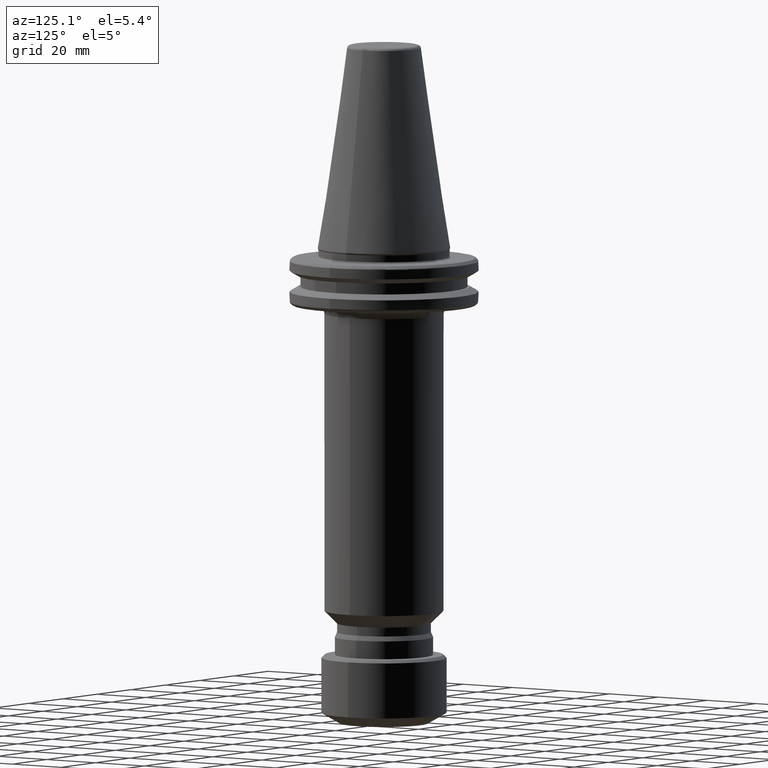
[diagram: clean part render]
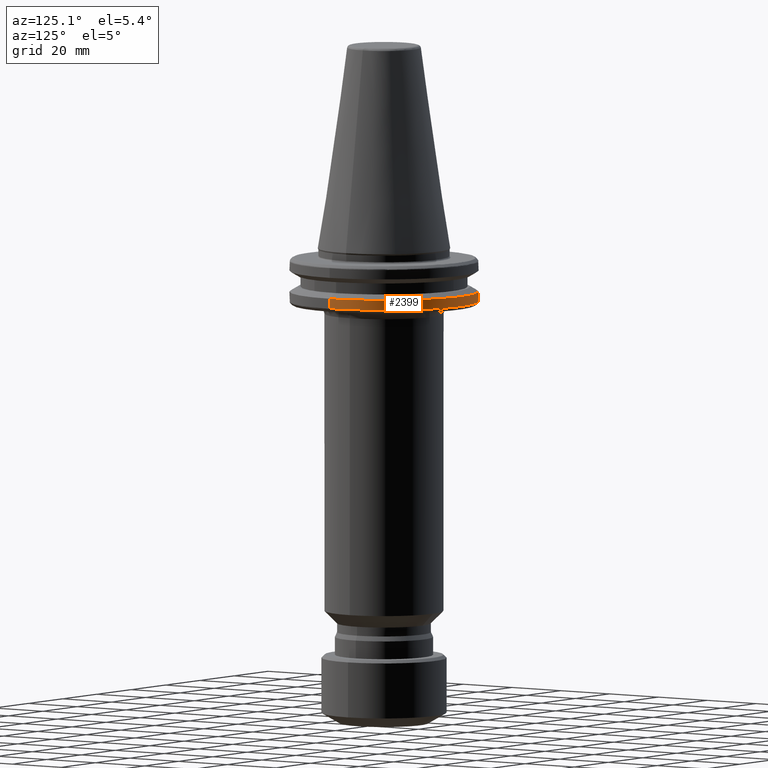
[diagram: same view with one face highlighted and labeled with its STEP entity id]
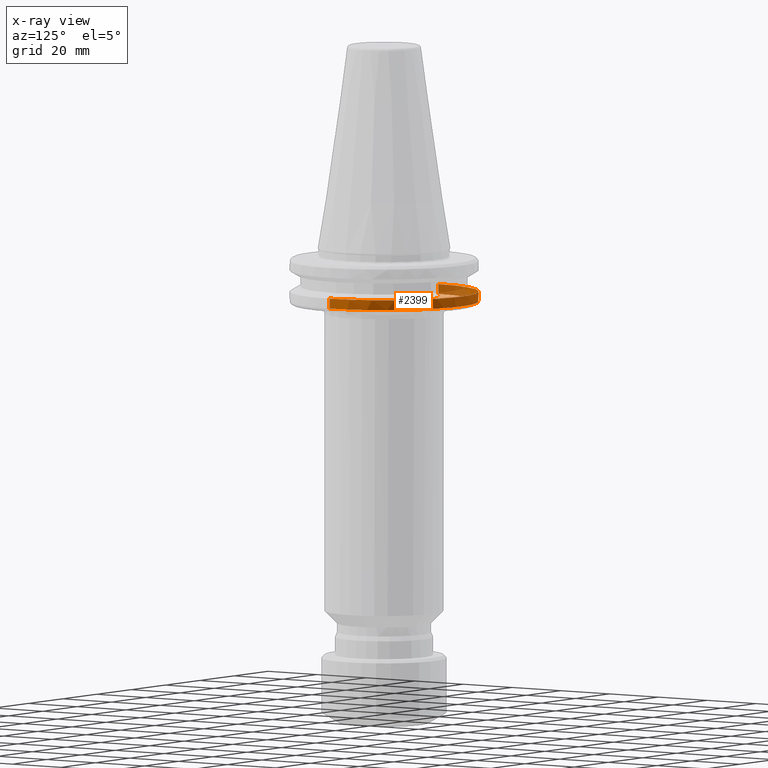
[diagram: x-ray of the same camera — body ghosted, the highlighted face saturated]
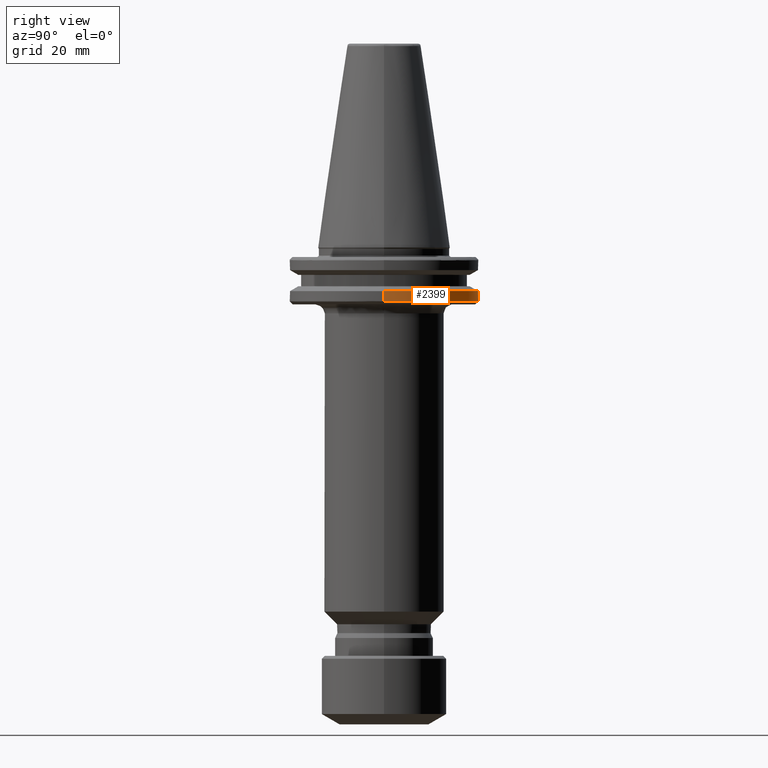
[diagram: same view with one face highlighted and labeled with its STEP entity id]
A machine part, auxiliary view. The second image highlights one B-rep face of the part: STEP entity #2399.
The next image is the same camera in x-ray: the body ghosted, the highlighted face saturated — about 15% of this face is hidden behind the body in this view.
A second angle (right view) of the same face is appended — the face is thin or edge-on in the first view.
In plain terms, the highlighted cylindrical surface (partial cylindrical patch) has radius 31.75 mm, axis along (0, 0, 1).
Its self-contained STEP definition (entity closure, byte-faithful):
#17 = FACE_OUTER_BOUND ( 'NONE', #3026, .T. ) ;
#36 = CIRCLE ( 'NONE', #2515, 31.75000000000000000 ) ;
#166 = VERTEX_POINT ( 'NONE', #1814 ) ;
#208 = VERTEX_POINT ( 'NONE', #3484 ) ;
#272 = CARTESIAN_POINT ( 'NONE',  ( 0.0000000000000000000, 0.0000000000000000000, 69.75694866325665100 ) ) ;
#296 = DIRECTION ( 'NONE',  ( 0.0000000000000000000, 0.0000000000000000000, 1.000000000000000000 ) ) ;
#347 = ORIENTED_EDGE ( 'NONE', *, *, #1350, .F. ) ;
#355 = CARTESIAN_POINT ( 'NONE',  ( -31.75000000000000000, 3.888253587292846500E-015, 69.75694866325665100 ) ) ;
#365 = CARTESIAN_POINT ( 'NONE',  ( -31.75000000000000000, 3.888253587292846500E-015, -17.93431457505076300 ) ) ;
#381 = VERTEX_POINT ( 'NONE', #1165 ) ;
#396 = ORIENTED_EDGE ( 'NONE', *, *, #3454, .T. ) ;
#563 = ORIENTED_EDGE ( 'NONE', *, *, #615, .T. ) ;
#581 = VECTOR ( 'NONE', #1865, 1000.000000000000000 ) ;
#615 = EDGE_CURVE ( 'NONE', #2860, #166, #771, .T. ) ;
#704 = LINE ( 'NONE', #1589, #581 ) ;
#771 = LINE ( 'NONE', #355, #3453 ) ;
#791 = DIRECTION ( 'NONE',  ( 0.0000000000000000000, 0.0000000000000000000, 1.000000000000000000 ) ) ;
#930 = CARTESIAN_POINT ( 'NONE',  ( 31.75000000000000000, 0.0000000000000000000, -14.62183664205671200 ) ) ;
#955 = AXIS2_PLACEMENT_3D ( 'NONE', #2811, #1206, #3077 ) ;
#1112 = CIRCLE ( 'NONE', #955, 31.75000000000000000 ) ;
#1160 = CARTESIAN_POINT ( 'NONE',  ( 0.0000000000000000000, 0.0000000000000000000, -17.93431457505076300 ) ) ;
#1165 = CARTESIAN_POINT ( 'NONE',  ( 31.75000000000000000, 0.0000000000000000000, -17.93431457505076300 ) ) ;
#1182 = DIRECTION ( 'NONE',  ( 0.0000000000000000000, 0.0000000000000000000, 1.000000000000000000 ) ) ;
#1206 = DIRECTION ( 'NONE',  ( 0.0000000000000000000, 0.0000000000000000000, 1.000000000000000000 ) ) ;
#1350 = EDGE_CURVE ( 'NONE', #3039, #166, #36, .T. ) ;
#1437 = DIRECTION ( 'NONE',  ( 1.000000000000000000, 0.0000000000000000000, 0.0000000000000000000 ) ) ;
#1487 = EDGE_CURVE ( 'NONE', #381, #3039, #704, .T. ) ;
#1552 = DIRECTION ( 'NONE',  ( -0.0000000000000000000, -0.0000000000000000000, 1.000000000000000000 ) ) ;
#1573 = AXIS2_PLACEMENT_3D ( 'NONE', #1160, #3031, #1437 ) ;
#1589 = CARTESIAN_POINT ( 'NONE',  ( 31.75000000000000000, 0.0000000000000000000, 69.75694866325665100 ) ) ;
#1633 = CIRCLE ( 'NONE', #1573, 31.74999999999999300 ) ;
#1767 = ORIENTED_EDGE ( 'NONE', *, *, #1487, .F. ) ;
#1814 = CARTESIAN_POINT ( 'NONE',  ( -31.75000000000000000, 3.888253587292846500E-015, -14.62183664205671200 ) ) ;
#1861 = EDGE_CURVE ( 'NONE', #3047, #208, #1633, .T. ) ;
#1865 = DIRECTION ( 'NONE',  ( 0.0000000000000000000, 0.0000000000000000000, 1.000000000000000000 ) ) ;
#1993 = DIRECTION ( 'NONE',  ( 1.000000000000000000, 0.0000000000000000000, 0.0000000000000000000 ) ) ;
#2399 = ADVANCED_FACE ( 'NONE', ( #17 ), #3462, .T. ) ;
#2415 = CARTESIAN_POINT ( 'NONE',  ( 0.0000000000000000000, 0.0000000000000000000, -17.93431457505076300 ) ) ;
#2515 = AXIS2_PLACEMENT_3D ( 'NONE', #3151, #1552, #3412 ) ;
#2517 = ORIENTED_EDGE ( 'NONE', *, *, #1861, .T. ) ;
#2675 = DIRECTION ( 'NONE',  ( 1.000000000000000000, 0.0000000000000000000, 0.0000000000000000000 ) ) ;
#2780 = AXIS2_PLACEMENT_3D ( 'NONE', #272, #1182, #1993 ) ;
#2811 = CARTESIAN_POINT ( 'NONE',  ( 0.0000000000000000000, 0.0000000000000000000, -17.93431457505076300 ) ) ;
#2816 = CIRCLE ( 'NONE', #3415, 31.75000000000000000 ) ;
#2860 = VERTEX_POINT ( 'NONE', #365 ) ;
#2967 = ORIENTED_EDGE ( 'NONE', *, *, #3021, .T. ) ;
#3021 = EDGE_CURVE ( 'NONE', #381, #3047, #1112, .T. ) ;
#3026 = EDGE_LOOP ( 'NONE', ( #396, #563, #347, #1767, #2967, #2517 ) ) ;
#3031 = DIRECTION ( 'NONE',  ( -0.0000000000000000000, -0.0000000000000000000, 1.000000000000000000 ) ) ;
#3039 = VERTEX_POINT ( 'NONE', #930 ) ;
#3047 = VERTEX_POINT ( 'NONE', #3344 ) ;
#3077 = DIRECTION ( 'NONE',  ( 1.000000000000000000, 0.0000000000000000000, 0.0000000000000000000 ) ) ;
#3151 = CARTESIAN_POINT ( 'NONE',  ( 0.0000000000000000000, 0.0000000000000000000, -14.62183664205671200 ) ) ;
#3344 = CARTESIAN_POINT ( 'NONE',  ( 8.600431037885689600, 30.56296919415016700, -17.93431457505076300 ) ) ;
#3412 = DIRECTION ( 'NONE',  ( -1.000000000000000000, 0.0000000000000000000, 0.0000000000000000000 ) ) ;
#3415 = AXIS2_PLACEMENT_3D ( 'NONE', #2415, #791, #2675 ) ;
#3453 = VECTOR ( 'NONE', #296, 1000.000000000000000 ) ;
#3454 = EDGE_CURVE ( 'NONE', #208, #2860, #2816, .T. ) ;
#3462 = CYLINDRICAL_SURFACE ( 'NONE', #2780, 31.75000000000000000 ) ;
#3484 = CARTESIAN_POINT ( 'NONE',  ( -8.717907037342165200, 30.52966748735170600, -17.93431457505076300 ) ) ;